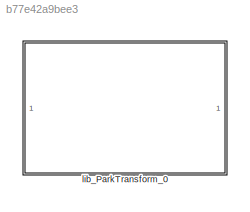
MODEL slx_b77e42a9bee3
KIND library
CONFIG AbsTol = auto
CONFIG EnableMultiTasking = off
CONFIG FixedStep = auto
CONFIG MaxStep = auto
CONFIG MinStep = auto
CONFIG RelTol = 1e-3
CONFIG SampleTimeConstraint = Unconstrained
CONFIG SolverName = VariableStepAuto
CONFIG StartTime = 0.0
CONFIG StopTime = 10.0
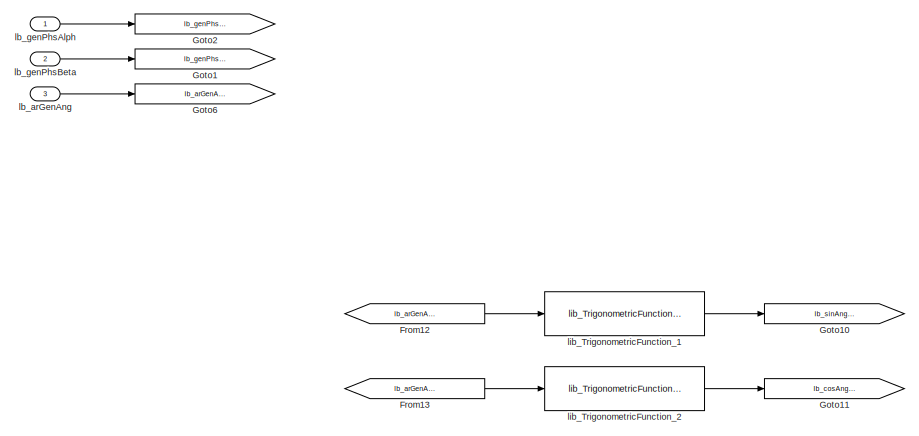
[diagram: lib_ParkTransform_0 - part 1/2, left side, full height]
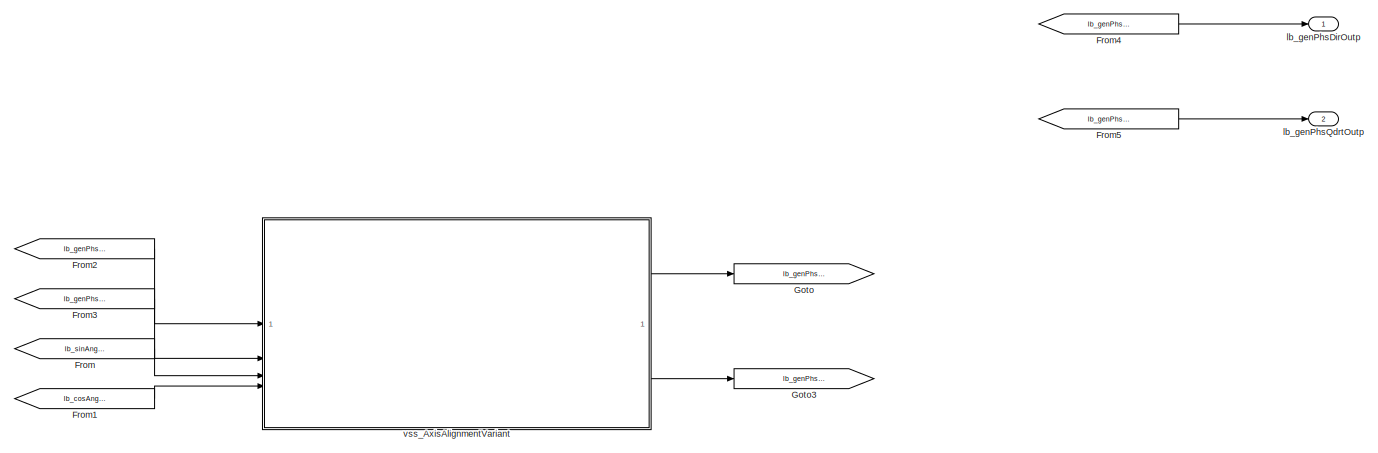
[diagram: lib_ParkTransform_0 - part 2/2, right side, full height]
BLOCK [SubSystem] lib_ParkTransform_0
  VariantControl = ClarkTransf_MIL_flo
BLOCK [From] lib_ParkTransform_0/From
  GotoTag = lb_sinAngInpt
BLOCK [From] lib_ParkTransform_0/From1
  GotoTag = lb_cosAngInpt
BLOCK [From] lib_ParkTransform_0/From12
  GotoTag = lb_arGenAng
BLOCK [From] lib_ParkTransform_0/From13
  GotoTag = lb_arGenAng
BLOCK [From] lib_ParkTransform_0/From2
  GotoTag = lb_genPhsAlph
BLOCK [From] lib_ParkTransform_0/From3
  GotoTag = lb_genPhsBeta
BLOCK [From] lib_ParkTransform_0/From4
  GotoTag = lb_genPhsDirOutp
BLOCK [From] lib_ParkTransform_0/From5
  GotoTag = lb_genPhsQdrtOutp
BLOCK [Goto] lib_ParkTransform_0/Goto
  GotoTag = lb_genPhsDirOutp
BLOCK [Goto] lib_ParkTransform_0/Goto1
  GotoTag = lb_genPhsBeta
BLOCK [Goto] lib_ParkTransform_0/Goto10
  GotoTag = lb_sinAngInpt
BLOCK [Goto] lib_ParkTransform_0/Goto11
  GotoTag = lb_cosAngInpt
BLOCK [Goto] lib_ParkTransform_0/Goto2
  GotoTag = lb_genPhsAlph
BLOCK [Goto] lib_ParkTransform_0/Goto3
  GotoTag = lb_genPhsQdrtOutp
BLOCK [Goto] lib_ParkTransform_0/Goto6
  GotoTag = lb_arGenAng
BLOCK [Inport] lib_ParkTransform_0/lb_arGenAng
  Port = 3
BLOCK [Inport] lib_ParkTransform_0/lb_genPhsAlph
BLOCK [Inport] lib_ParkTransform_0/lb_genPhsBeta
  Port = 2
BLOCK [Outport] lib_ParkTransform_0/lb_genPhsDirOutp
  VectorParamsAs1DForOutWhenUnconnected = off
BLOCK [Outport] lib_ParkTransform_0/lb_genPhsQdrtOutp
  Port = 2
  VectorParamsAs1DForOutWhenUnconnected = off
BLOCK [Reference] lib_ParkTransform_0/lib_TrigonometricFunction_1  REF=lib_trigonometric_function/lib_TrigonometricFunction_0  (lib defined in slx_582fdfe82842)
  SourceBlock = lib_trigonometric_function/lib_TrigonometricFunction_0
BLOCK [Reference] lib_ParkTransform_0/lib_TrigonometricFunction_2  REF=lib_trigonometric_function/lib_TrigonometricFunction_0  (lib defined in slx_582fdfe82842)
  SourceBlock = lib_trigonometric_function/lib_TrigonometricFunction_0
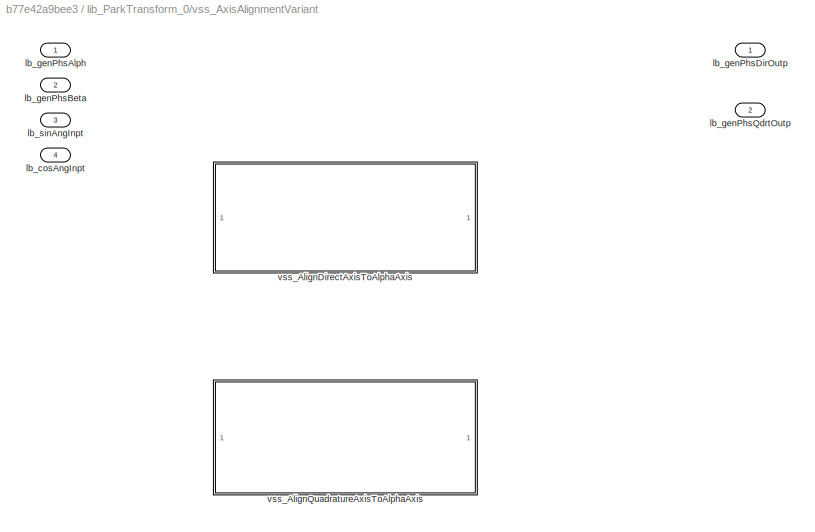
BLOCK [SubSystem] lib_ParkTransform_0/vss_AxisAlignmentVariant
  LabelModeActiveChoice = lb_parDirToAlphModeLbl
  Variant = on
  VariantControl = Choice
  VariantControlMode = label
BLOCK [Inport] lib_ParkTransform_0/vss_AxisAlignmentVariant/lb_cosAngInpt
  Port = 4
BLOCK [Inport] lib_ParkTransform_0/vss_AxisAlignmentVariant/lb_genPhsAlph
BLOCK [Inport] lib_ParkTransform_0/vss_AxisAlignmentVariant/lb_genPhsBeta
  Port = 2
BLOCK [Outport] lib_ParkTransform_0/vss_AxisAlignmentVariant/lb_genPhsDirOutp
  VectorParamsAs1DForOutWhenUnconnected = off
BLOCK [Outport] lib_ParkTransform_0/vss_AxisAlignmentVariant/lb_genPhsQdrtOutp
  Port = 2
  VectorParamsAs1DForOutWhenUnconnected = off
BLOCK [Inport] lib_ParkTransform_0/vss_AxisAlignmentVariant/lb_sinAngInpt
  Port = 3
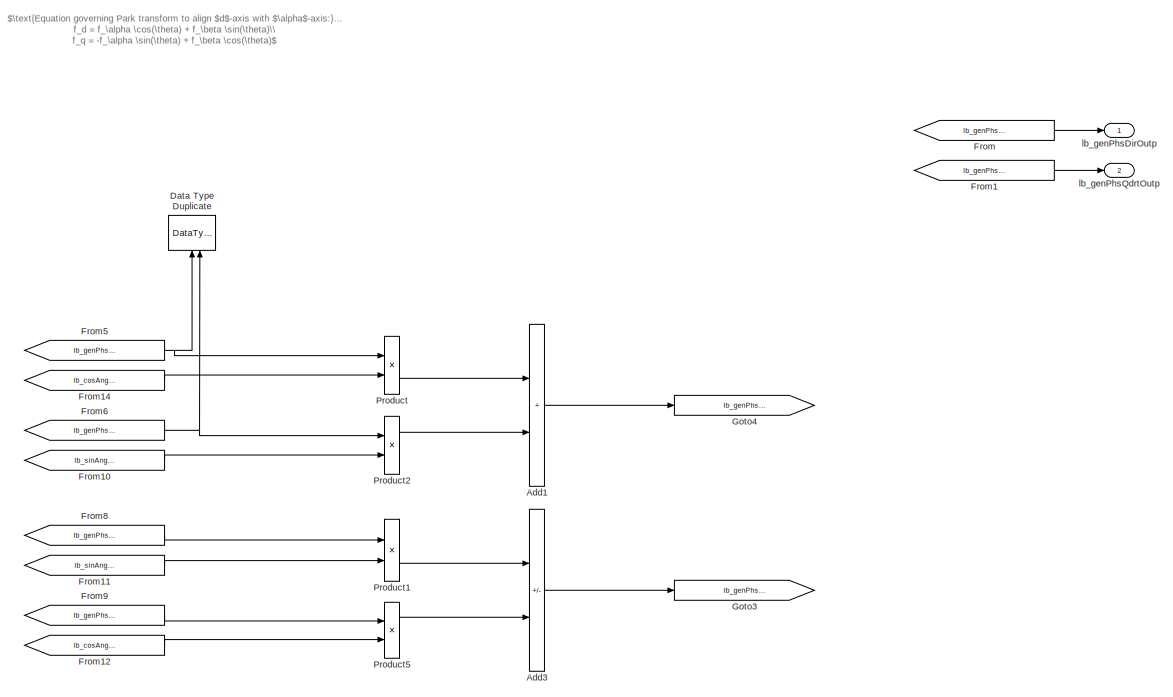
[diagram: lib_ParkTransform_0/vss_AxisAlignmentVariant/vss_AlignDirectAxisToAlphaAxis - part 1/2, center side, full height]
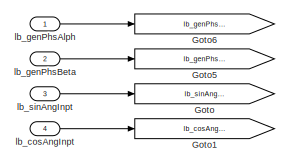
[diagram: lib_ParkTransform_0/vss_AxisAlignmentVariant/vss_AlignDirectAxisToAlphaAxis - part 2/2, top left region]
BLOCK [SubSystem] lib_ParkTransform_0/vss_AxisAlignmentVariant/vss_AlignDirectAxisToAlphaAxis
  VariantControl = lb_parDirToAlphModeLbl
BLOCK [Sum] lib_ParkTransform_0/vss_AxisAlignmentVariant/vss_AlignDirectAxisToAlphaAxis/Add1
  IconShape = rectangular
  OutDataTypeStr = Inherit: Same as first input
  RndMeth = Simplest
BLOCK [Sum] lib_ParkTransform_0/vss_AxisAlignmentVariant/vss_AlignDirectAxisToAlphaAxis/Add3
  IconShape = rectangular
  Inputs = -+
  OutDataTypeStr = Inherit: Same as first input
  RndMeth = Simplest
BLOCK [DataTypeDuplicate] lib_ParkTransform_0/vss_AxisAlignmentVariant/vss_AlignDirectAxisToAlphaAxis/Data Type Duplicate
  NameLocation = right
BLOCK [From] lib_ParkTransform_0/vss_AxisAlignmentVariant/vss_AlignDirectAxisToAlphaAxis/From
  GotoTag = lb_genPhsDirOutp
BLOCK [From] lib_ParkTransform_0/vss_AxisAlignmentVariant/vss_AlignDirectAxisToAlphaAxis/From1
  GotoTag = lb_genPhsQdrtOutp
BLOCK [From] lib_ParkTransform_0/vss_AxisAlignmentVariant/vss_AlignDirectAxisToAlphaAxis/From10
  GotoTag = lb_sinAngInpt
BLOCK [From] lib_ParkTransform_0/vss_AxisAlignmentVariant/vss_AlignDirectAxisToAlphaAxis/From11
  GotoTag = lb_sinAngInpt
BLOCK [From] lib_ParkTransform_0/vss_AxisAlignmentVariant/vss_AlignDirectAxisToAlphaAxis/From12
  GotoTag = lb_cosAngInpt
BLOCK [From] lib_ParkTransform_0/vss_AxisAlignmentVariant/vss_AlignDirectAxisToAlphaAxis/From14
  GotoTag = lb_cosAngInpt
BLOCK [From] lib_ParkTransform_0/vss_AxisAlignmentVariant/vss_AlignDirectAxisToAlphaAxis/From5
  GotoTag = lb_genPhsAlph
BLOCK [From] lib_ParkTransform_0/vss_AxisAlignmentVariant/vss_AlignDirectAxisToAlphaAxis/From6
  GotoTag = lb_genPhsBeta
BLOCK [From] lib_ParkTransform_0/vss_AxisAlignmentVariant/vss_AlignDirectAxisToAlphaAxis/From8
  GotoTag = lb_genPhsAlph
BLOCK [From] lib_ParkTransform_0/vss_AxisAlignmentVariant/vss_AlignDirectAxisToAlphaAxis/From9
  GotoTag = lb_genPhsBeta
BLOCK [Goto] lib_ParkTransform_0/vss_AxisAlignmentVariant/vss_AlignDirectAxisToAlphaAxis/Goto
  GotoTag = lb_sinAngInpt
BLOCK [Goto] lib_ParkTransform_0/vss_AxisAlignmentVariant/vss_AlignDirectAxisToAlphaAxis/Goto1
  GotoTag = lb_cosAngInpt
BLOCK [Goto] lib_ParkTransform_0/vss_AxisAlignmentVariant/vss_AlignDirectAxisToAlphaAxis/Goto3
  GotoTag = lb_genPhsQdrtOutp
BLOCK [Goto] lib_ParkTransform_0/vss_AxisAlignmentVariant/vss_AlignDirectAxisToAlphaAxis/Goto4
  GotoTag = lb_genPhsDirOutp
BLOCK [Goto] lib_ParkTransform_0/vss_AxisAlignmentVariant/vss_AlignDirectAxisToAlphaAxis/Goto5
  GotoTag = lb_genPhsBeta
BLOCK [Goto] lib_ParkTransform_0/vss_AxisAlignmentVariant/vss_AlignDirectAxisToAlphaAxis/Goto6
  GotoTag = lb_genPhsAlph
BLOCK [Product] lib_ParkTransform_0/vss_AxisAlignmentVariant/vss_AlignDirectAxisToAlphaAxis/Product
  OutDataTypeStr = Inherit: Same as first input
  RndMeth = Simplest
BLOCK [Product] lib_ParkTransform_0/vss_AxisAlignmentVariant/vss_AlignDirectAxisToAlphaAxis/Product1
  OutDataTypeStr = Inherit: Same as first input
  RndMeth = Simplest
BLOCK [Product] lib_ParkTransform_0/vss_AxisAlignmentVariant/vss_AlignDirectAxisToAlphaAxis/Product2
  OutDataTypeStr = Inherit: Same as first input
  RndMeth = Simplest
BLOCK [Product] lib_ParkTransform_0/vss_AxisAlignmentVariant/vss_AlignDirectAxisToAlphaAxis/Product5
  OutDataTypeStr = Inherit: Same as first input
  RndMeth = Simplest
BLOCK [Inport] lib_ParkTransform_0/vss_AxisAlignmentVariant/vss_AlignDirectAxisToAlphaAxis/lb_cosAngInpt
  Port = 4
BLOCK [Inport] lib_ParkTransform_0/vss_AxisAlignmentVariant/vss_AlignDirectAxisToAlphaAxis/lb_genPhsAlph
BLOCK [Inport] lib_ParkTransform_0/vss_AxisAlignmentVariant/vss_AlignDirectAxisToAlphaAxis/lb_genPhsBeta
  Port = 2
BLOCK [Outport] lib_ParkTransform_0/vss_AxisAlignmentVariant/vss_AlignDirectAxisToAlphaAxis/lb_genPhsDirOutp
  VectorParamsAs1DForOutWhenUnconnected = off
BLOCK [Outport] lib_ParkTransform_0/vss_AxisAlignmentVariant/vss_AlignDirectAxisToAlphaAxis/lb_genPhsQdrtOutp
  Port = 2
  VectorParamsAs1DForOutWhenUnconnected = off
BLOCK [Inport] lib_ParkTransform_0/vss_AxisAlignmentVariant/vss_AlignDirectAxisToAlphaAxis/lb_sinAngInpt
  Port = 3
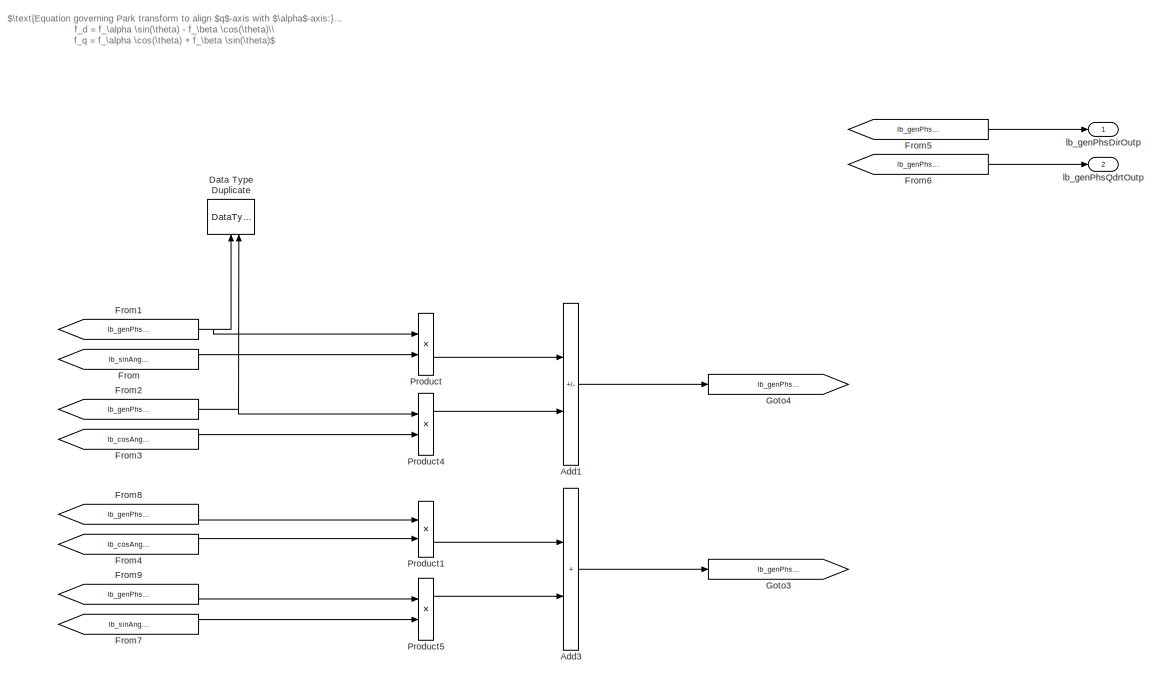
[diagram: lib_ParkTransform_0/vss_AxisAlignmentVariant/vss_AlignQuadratureAxisToAlphaAxis - part 1/2, center side, full height]
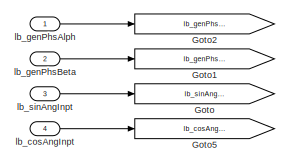
[diagram: lib_ParkTransform_0/vss_AxisAlignmentVariant/vss_AlignQuadratureAxisToAlphaAxis - part 2/2, top left region]
BLOCK [SubSystem] lib_ParkTransform_0/vss_AxisAlignmentVariant/vss_AlignQuadratureAxisToAlphaAxis
  VariantControl = lb_parQdrtToAlphModeLbl
BLOCK [Sum] lib_ParkTransform_0/vss_AxisAlignmentVariant/vss_AlignQuadratureAxisToAlphaAxis/Add1
  IconShape = rectangular
  Inputs = +-
  OutDataTypeStr = Inherit: Same as first input
  RndMeth = Simplest
BLOCK [Sum] lib_ParkTransform_0/vss_AxisAlignmentVariant/vss_AlignQuadratureAxisToAlphaAxis/Add3
  IconShape = rectangular
  OutDataTypeStr = Inherit: Same as first input
  RndMeth = Simplest
BLOCK [DataTypeDuplicate] lib_ParkTransform_0/vss_AxisAlignmentVariant/vss_AlignQuadratureAxisToAlphaAxis/Data Type Duplicate
  NameLocation = right
BLOCK [From] lib_ParkTransform_0/vss_AxisAlignmentVariant/vss_AlignQuadratureAxisToAlphaAxis/From
  GotoTag = lb_sinAngInpt
BLOCK [From] lib_ParkTransform_0/vss_AxisAlignmentVariant/vss_AlignQuadratureAxisToAlphaAxis/From1
  GotoTag = lb_genPhsAlph
BLOCK [From] lib_ParkTransform_0/vss_AxisAlignmentVariant/vss_AlignQuadratureAxisToAlphaAxis/From2
  GotoTag = lb_genPhsBeta
BLOCK [From] lib_ParkTransform_0/vss_AxisAlignmentVariant/vss_AlignQuadratureAxisToAlphaAxis/From3
  GotoTag = lb_cosAngInpt
BLOCK [From] lib_ParkTransform_0/vss_AxisAlignmentVariant/vss_AlignQuadratureAxisToAlphaAxis/From4
  GotoTag = lb_cosAngInpt
BLOCK [From] lib_ParkTransform_0/vss_AxisAlignmentVariant/vss_AlignQuadratureAxisToAlphaAxis/From5
  GotoTag = lb_genPhsDirOutp
BLOCK [From] lib_ParkTransform_0/vss_AxisAlignmentVariant/vss_AlignQuadratureAxisToAlphaAxis/From6
  GotoTag = lb_genPhsQdrtOutp
BLOCK [From] lib_ParkTransform_0/vss_AxisAlignmentVariant/vss_AlignQuadratureAxisToAlphaAxis/From7
  GotoTag = lb_sinAngInpt
BLOCK [From] lib_ParkTransform_0/vss_AxisAlignmentVariant/vss_AlignQuadratureAxisToAlphaAxis/From8
  GotoTag = lb_genPhsAlph
BLOCK [From] lib_ParkTransform_0/vss_AxisAlignmentVariant/vss_AlignQuadratureAxisToAlphaAxis/From9
  GotoTag = lb_genPhsBeta
BLOCK [Goto] lib_ParkTransform_0/vss_AxisAlignmentVariant/vss_AlignQuadratureAxisToAlphaAxis/Goto
  GotoTag = lb_sinAngInpt
BLOCK [Goto] lib_ParkTransform_0/vss_AxisAlignmentVariant/vss_AlignQuadratureAxisToAlphaAxis/Goto1
  GotoTag = lb_genPhsBeta
BLOCK [Goto] lib_ParkTransform_0/vss_AxisAlignmentVariant/vss_AlignQuadratureAxisToAlphaAxis/Goto2
  GotoTag = lb_genPhsAlph
BLOCK [Goto] lib_ParkTransform_0/vss_AxisAlignmentVariant/vss_AlignQuadratureAxisToAlphaAxis/Goto3
  GotoTag = lb_genPhsQdrtOutp
BLOCK [Goto] lib_ParkTransform_0/vss_AxisAlignmentVariant/vss_AlignQuadratureAxisToAlphaAxis/Goto4
  GotoTag = lb_genPhsDirOutp
BLOCK [Goto] lib_ParkTransform_0/vss_AxisAlignmentVariant/vss_AlignQuadratureAxisToAlphaAxis/Goto5
  GotoTag = lb_cosAngInpt
BLOCK [Product] lib_ParkTransform_0/vss_AxisAlignmentVariant/vss_AlignQuadratureAxisToAlphaAxis/Product
  OutDataTypeStr = Inherit: Same as first input
  RndMeth = Simplest
BLOCK [Product] lib_ParkTransform_0/vss_AxisAlignmentVariant/vss_AlignQuadratureAxisToAlphaAxis/Product1
  OutDataTypeStr = Inherit: Same as first input
  RndMeth = Simplest
BLOCK [Product] lib_ParkTransform_0/vss_AxisAlignmentVariant/vss_AlignQuadratureAxisToAlphaAxis/Product4
  OutDataTypeStr = Inherit: Same as first input
  RndMeth = Simplest
BLOCK [Product] lib_ParkTransform_0/vss_AxisAlignmentVariant/vss_AlignQuadratureAxisToAlphaAxis/Product5
  OutDataTypeStr = Inherit: Same as first input
  RndMeth = Simplest
BLOCK [Inport] lib_ParkTransform_0/vss_AxisAlignmentVariant/vss_AlignQuadratureAxisToAlphaAxis/lb_cosAngInpt
  Port = 4
BLOCK [Inport] lib_ParkTransform_0/vss_AxisAlignmentVariant/vss_AlignQuadratureAxisToAlphaAxis/lb_genPhsAlph
BLOCK [Inport] lib_ParkTransform_0/vss_AxisAlignmentVariant/vss_AlignQuadratureAxisToAlphaAxis/lb_genPhsBeta
  Port = 2
BLOCK [Outport] lib_ParkTransform_0/vss_AxisAlignmentVariant/vss_AlignQuadratureAxisToAlphaAxis/lb_genPhsDirOutp
  VectorParamsAs1DForOutWhenUnconnected = off
BLOCK [Outport] lib_ParkTransform_0/vss_AxisAlignmentVariant/vss_AlignQuadratureAxisToAlphaAxis/lb_genPhsQdrtOutp
  Port = 2
  VectorParamsAs1DForOutWhenUnconnected = off
BLOCK [Inport] lib_ParkTransform_0/vss_AxisAlignmentVariant/vss_AlignQuadratureAxisToAlphaAxis/lb_sinAngInpt
  Port = 3
ANNOTATION lib_ParkTransform_0/vss_AxisAlignmentVariant/vss_AlignDirectAxisToAlphaAxis: $\text{Equation governing Park transform to align $d$-axis with $\alpha$-axis:}\\ f_d = f_\alpha \cos(\theta) + f_\beta \sin(\theta)\\ f_q = -f_\alpha \sin(\theta) + f_\beta \cos(\theta)$
ANNOTATION lib_ParkTransform_0/vss_AxisAlignmentVariant/vss_AlignQuadratureAxisToAlphaAxis: $\text{Equation governing Park transform to align $q$-axis with $\alpha$-axis:}\\ f_d = f_\alpha \sin(\theta) - f_\beta \cos(\theta)\\ f_q = f_\alpha \cos(\theta) + f_\beta \sin(\theta)$
LINE lib_ParkTransform_0/From12:1 -> lib_ParkTransform_0/lib_TrigonometricFunction_1:1
LINE lib_ParkTransform_0/From13:1 -> lib_ParkTransform_0/lib_TrigonometricFunction_2:1
LINE lib_ParkTransform_0/From1:1 -> lib_ParkTransform_0/vss_AxisAlignmentVariant:4
LINE lib_ParkTransform_0/From2:1 -> lib_ParkTransform_0/vss_AxisAlignmentVariant:1
LINE lib_ParkTransform_0/From3:1 -> lib_ParkTransform_0/vss_AxisAlignmentVariant:2
LINE lib_ParkTransform_0/From4:1 -> lib_ParkTransform_0/lb_genPhsDirOutp:1
LINE lib_ParkTransform_0/From5:1 -> lib_ParkTransform_0/lb_genPhsQdrtOutp:1
LINE lib_ParkTransform_0/From:1 -> lib_ParkTransform_0/vss_AxisAlignmentVariant:3
LINE lib_ParkTransform_0/lb_arGenAng:1 -> lib_ParkTransform_0/Goto6:1
LINE lib_ParkTransform_0/lb_genPhsAlph:1 -> lib_ParkTransform_0/Goto2:1
LINE lib_ParkTransform_0/lb_genPhsBeta:1 -> lib_ParkTransform_0/Goto1:1
LINE lib_ParkTransform_0/lib_TrigonometricFunction_1:1 -> lib_ParkTransform_0/Goto10:1
LINE lib_ParkTransform_0/lib_TrigonometricFunction_2:1 -> lib_ParkTransform_0/Goto11:1
LINE lib_ParkTransform_0/vss_AxisAlignmentVariant/vss_AlignDirectAxisToAlphaAxis/Add1:1 -> lib_ParkTransform_0/vss_AxisAlignmentVariant/vss_AlignDirectAxisToAlphaAxis/Goto4:1
LINE lib_ParkTransform_0/vss_AxisAlignmentVariant/vss_AlignDirectAxisToAlphaAxis/Add3:1 -> lib_ParkTransform_0/vss_AxisAlignmentVariant/vss_AlignDirectAxisToAlphaAxis/Goto3:1
LINE lib_ParkTransform_0/vss_AxisAlignmentVariant/vss_AlignDirectAxisToAlphaAxis/From10:1 -> lib_ParkTransform_0/vss_AxisAlignmentVariant/vss_AlignDirectAxisToAlphaAxis/Product2:2
LINE lib_ParkTransform_0/vss_AxisAlignmentVariant/vss_AlignDirectAxisToAlphaAxis/From11:1 -> lib_ParkTransform_0/vss_AxisAlignmentVariant/vss_AlignDirectAxisToAlphaAxis/Product1:2
LINE lib_ParkTransform_0/vss_AxisAlignmentVariant/vss_AlignDirectAxisToAlphaAxis/From12:1 -> lib_ParkTransform_0/vss_AxisAlignmentVariant/vss_AlignDirectAxisToAlphaAxis/Product5:2
LINE lib_ParkTransform_0/vss_AxisAlignmentVariant/vss_AlignDirectAxisToAlphaAxis/From14:1 -> lib_ParkTransform_0/vss_AxisAlignmentVariant/vss_AlignDirectAxisToAlphaAxis/Product:2
LINE lib_ParkTransform_0/vss_AxisAlignmentVariant/vss_AlignDirectAxisToAlphaAxis/From1:1 -> lib_ParkTransform_0/vss_AxisAlignmentVariant/vss_AlignDirectAxisToAlphaAxis/lb_genPhsQdrtOutp:1
NET lib_ParkTransform_0/vss_AxisAlignmentVariant/vss_AlignDirectAxisToAlphaAxis/From5:1 -> lib_ParkTransform_0/vss_AxisAlignmentVariant/vss_AlignDirectAxisToAlphaAxis/Data Type Duplicate:1, lib_ParkTransform_0/vss_AxisAlignmentVariant/vss_AlignDirectAxisToAlphaAxis/Product:1
NET lib_ParkTransform_0/vss_AxisAlignmentVariant/vss_AlignDirectAxisToAlphaAxis/From6:1 -> lib_ParkTransform_0/vss_AxisAlignmentVariant/vss_AlignDirectAxisToAlphaAxis/Data Type Duplicate:2, lib_ParkTransform_0/vss_AxisAlignmentVariant/vss_AlignDirectAxisToAlphaAxis/Product2:1
LINE lib_ParkTransform_0/vss_AxisAlignmentVariant/vss_AlignDirectAxisToAlphaAxis/From8:1 -> lib_ParkTransform_0/vss_AxisAlignmentVariant/vss_AlignDirectAxisToAlphaAxis/Product1:1
LINE lib_ParkTransform_0/vss_AxisAlignmentVariant/vss_AlignDirectAxisToAlphaAxis/From9:1 -> lib_ParkTransform_0/vss_AxisAlignmentVariant/vss_AlignDirectAxisToAlphaAxis/Product5:1
LINE lib_ParkTransform_0/vss_AxisAlignmentVariant/vss_AlignDirectAxisToAlphaAxis/From:1 -> lib_ParkTransform_0/vss_AxisAlignmentVariant/vss_AlignDirectAxisToAlphaAxis/lb_genPhsDirOutp:1
LINE lib_ParkTransform_0/vss_AxisAlignmentVariant/vss_AlignDirectAxisToAlphaAxis/Product1:1 -> lib_ParkTransform_0/vss_AxisAlignmentVariant/vss_AlignDirectAxisToAlphaAxis/Add3:1
LINE lib_ParkTransform_0/vss_AxisAlignmentVariant/vss_AlignDirectAxisToAlphaAxis/Product2:1 -> lib_ParkTransform_0/vss_AxisAlignmentVariant/vss_AlignDirectAxisToAlphaAxis/Add1:2
LINE lib_ParkTransform_0/vss_AxisAlignmentVariant/vss_AlignDirectAxisToAlphaAxis/Product5:1 -> lib_ParkTransform_0/vss_AxisAlignmentVariant/vss_AlignDirectAxisToAlphaAxis/Add3:2
LINE lib_ParkTransform_0/vss_AxisAlignmentVariant/vss_AlignDirectAxisToAlphaAxis/Product:1 -> lib_ParkTransform_0/vss_AxisAlignmentVariant/vss_AlignDirectAxisToAlphaAxis/Add1:1
LINE lib_ParkTransform_0/vss_AxisAlignmentVariant/vss_AlignDirectAxisToAlphaAxis/lb_cosAngInpt:1 -> lib_ParkTransform_0/vss_AxisAlignmentVariant/vss_AlignDirectAxisToAlphaAxis/Goto1:1
LINE lib_ParkTransform_0/vss_AxisAlignmentVariant/vss_AlignDirectAxisToAlphaAxis/lb_genPhsAlph:1 -> lib_ParkTransform_0/vss_AxisAlignmentVariant/vss_AlignDirectAxisToAlphaAxis/Goto6:1
LINE lib_ParkTransform_0/vss_AxisAlignmentVariant/vss_AlignDirectAxisToAlphaAxis/lb_genPhsBeta:1 -> lib_ParkTransform_0/vss_AxisAlignmentVariant/vss_AlignDirectAxisToAlphaAxis/Goto5:1
LINE lib_ParkTransform_0/vss_AxisAlignmentVariant/vss_AlignDirectAxisToAlphaAxis/lb_sinAngInpt:1 -> lib_ParkTransform_0/vss_AxisAlignmentVariant/vss_AlignDirectAxisToAlphaAxis/Goto:1
LINE lib_ParkTransform_0/vss_AxisAlignmentVariant/vss_AlignQuadratureAxisToAlphaAxis/Add1:1 -> lib_ParkTransform_0/vss_AxisAlignmentVariant/vss_AlignQuadratureAxisToAlphaAxis/Goto4:1
LINE lib_ParkTransform_0/vss_AxisAlignmentVariant/vss_AlignQuadratureAxisToAlphaAxis/Add3:1 -> lib_ParkTransform_0/vss_AxisAlignmentVariant/vss_AlignQuadratureAxisToAlphaAxis/Goto3:1
NET lib_ParkTransform_0/vss_AxisAlignmentVariant/vss_AlignQuadratureAxisToAlphaAxis/From1:1 -> lib_ParkTransform_0/vss_AxisAlignmentVariant/vss_AlignQuadratureAxisToAlphaAxis/Data Type Duplicate:1, lib_ParkTransform_0/vss_AxisAlignmentVariant/vss_AlignQuadratureAxisToAlphaAxis/Product:1
NET lib_ParkTransform_0/vss_AxisAlignmentVariant/vss_AlignQuadratureAxisToAlphaAxis/From2:1 -> lib_ParkTransform_0/vss_AxisAlignmentVariant/vss_AlignQuadratureAxisToAlphaAxis/Data Type Duplicate:2, lib_ParkTransform_0/vss_AxisAlignmentVariant/vss_AlignQuadratureAxisToAlphaAxis/Product4:1
LINE lib_ParkTransform_0/vss_AxisAlignmentVariant/vss_AlignQuadratureAxisToAlphaAxis/From3:1 -> lib_ParkTransform_0/vss_AxisAlignmentVariant/vss_AlignQuadratureAxisToAlphaAxis/Product4:2
LINE lib_ParkTransform_0/vss_AxisAlignmentVariant/vss_AlignQuadratureAxisToAlphaAxis/From4:1 -> lib_ParkTransform_0/vss_AxisAlignmentVariant/vss_AlignQuadratureAxisToAlphaAxis/Product1:2
LINE lib_ParkTransform_0/vss_AxisAlignmentVariant/vss_AlignQuadratureAxisToAlphaAxis/From5:1 -> lib_ParkTransform_0/vss_AxisAlignmentVariant/vss_AlignQuadratureAxisToAlphaAxis/lb_genPhsDirOutp:1
LINE lib_ParkTransform_0/vss_AxisAlignmentVariant/vss_AlignQuadratureAxisToAlphaAxis/From6:1 -> lib_ParkTransform_0/vss_AxisAlignmentVariant/vss_AlignQuadratureAxisToAlphaAxis/lb_genPhsQdrtOutp:1
LINE lib_ParkTransform_0/vss_AxisAlignmentVariant/vss_AlignQuadratureAxisToAlphaAxis/From7:1 -> lib_ParkTransform_0/vss_AxisAlignmentVariant/vss_AlignQuadratureAxisToAlphaAxis/Product5:2
LINE lib_ParkTransform_0/vss_AxisAlignmentVariant/vss_AlignQuadratureAxisToAlphaAxis/From8:1 -> lib_ParkTransform_0/vss_AxisAlignmentVariant/vss_AlignQuadratureAxisToAlphaAxis/Product1:1
LINE lib_ParkTransform_0/vss_AxisAlignmentVariant/vss_AlignQuadratureAxisToAlphaAxis/From9:1 -> lib_ParkTransform_0/vss_AxisAlignmentVariant/vss_AlignQuadratureAxisToAlphaAxis/Product5:1
LINE lib_ParkTransform_0/vss_AxisAlignmentVariant/vss_AlignQuadratureAxisToAlphaAxis/From:1 -> lib_ParkTransform_0/vss_AxisAlignmentVariant/vss_AlignQuadratureAxisToAlphaAxis/Product:2
LINE lib_ParkTransform_0/vss_AxisAlignmentVariant/vss_AlignQuadratureAxisToAlphaAxis/Product1:1 -> lib_ParkTransform_0/vss_AxisAlignmentVariant/vss_AlignQuadratureAxisToAlphaAxis/Add3:1
LINE lib_ParkTransform_0/vss_AxisAlignmentVariant/vss_AlignQuadratureAxisToAlphaAxis/Product4:1 -> lib_ParkTransform_0/vss_AxisAlignmentVariant/vss_AlignQuadratureAxisToAlphaAxis/Add1:2
LINE lib_ParkTransform_0/vss_AxisAlignmentVariant/vss_AlignQuadratureAxisToAlphaAxis/Product5:1 -> lib_ParkTransform_0/vss_AxisAlignmentVariant/vss_AlignQuadratureAxisToAlphaAxis/Add3:2
LINE lib_ParkTransform_0/vss_AxisAlignmentVariant/vss_AlignQuadratureAxisToAlphaAxis/Product:1 -> lib_ParkTransform_0/vss_AxisAlignmentVariant/vss_AlignQuadratureAxisToAlphaAxis/Add1:1
LINE lib_ParkTransform_0/vss_AxisAlignmentVariant/vss_AlignQuadratureAxisToAlphaAxis/lb_cosAngInpt:1 -> lib_ParkTransform_0/vss_AxisAlignmentVariant/vss_AlignQuadratureAxisToAlphaAxis/Goto5:1
LINE lib_ParkTransform_0/vss_AxisAlignmentVariant/vss_AlignQuadratureAxisToAlphaAxis/lb_genPhsAlph:1 -> lib_ParkTransform_0/vss_AxisAlignmentVariant/vss_AlignQuadratureAxisToAlphaAxis/Goto2:1
LINE lib_ParkTransform_0/vss_AxisAlignmentVariant/vss_AlignQuadratureAxisToAlphaAxis/lb_genPhsBeta:1 -> lib_ParkTransform_0/vss_AxisAlignmentVariant/vss_AlignQuadratureAxisToAlphaAxis/Goto1:1
LINE lib_ParkTransform_0/vss_AxisAlignmentVariant/vss_AlignQuadratureAxisToAlphaAxis/lb_sinAngInpt:1 -> lib_ParkTransform_0/vss_AxisAlignmentVariant/vss_AlignQuadratureAxisToAlphaAxis/Goto:1
LINE lib_ParkTransform_0/vss_AxisAlignmentVariant:1 -> lib_ParkTransform_0/Goto:1
LINE lib_ParkTransform_0/vss_AxisAlignmentVariant:2 -> lib_ParkTransform_0/Goto3:1
note: NET lines group one-source signal fan-out (src -> all destinations, sorted); 1:1 wires keep LINE
